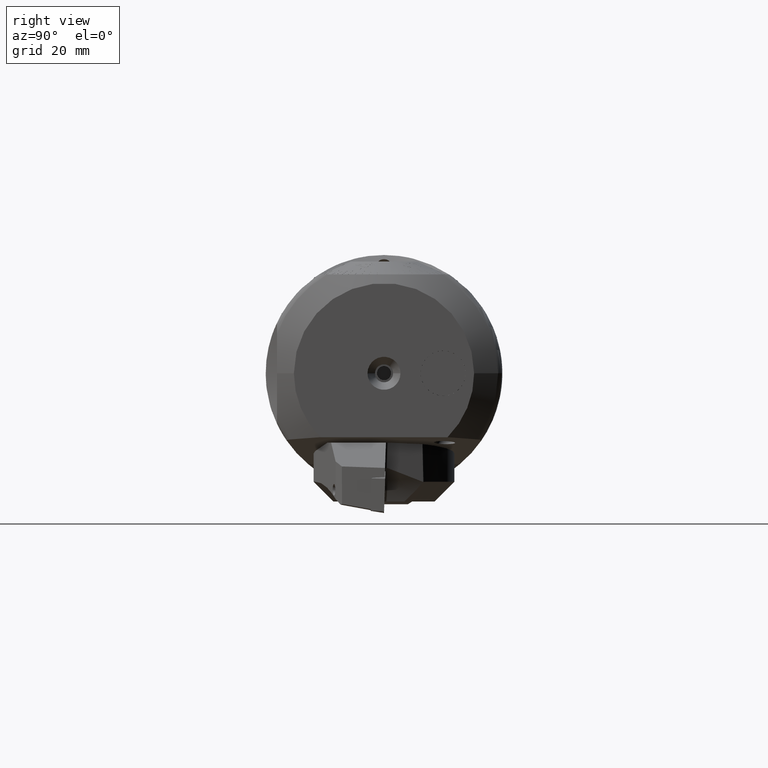
[diagram: clean part render]
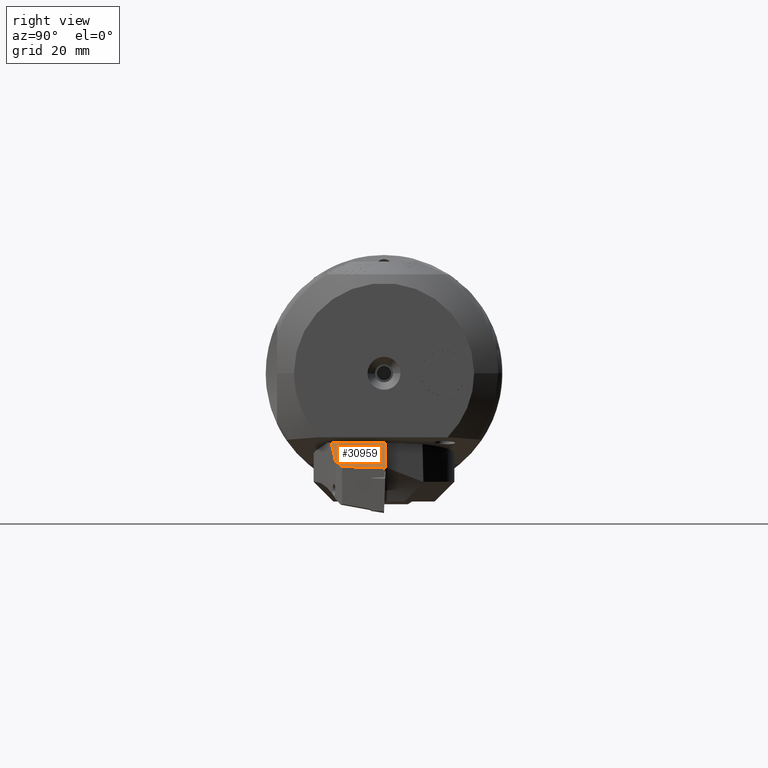
[diagram: same view with one face highlighted and labeled with its STEP entity id]
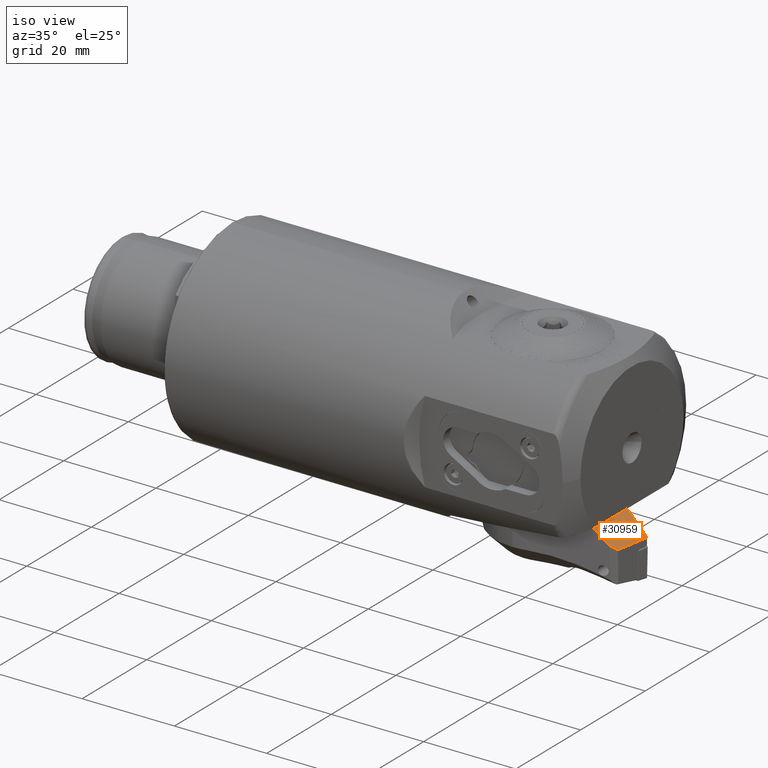
[diagram: same view with one face highlighted and labeled with its STEP entity id]
A machine part, right view. The second image highlights one B-rep face of the part: STEP entity #30959.
A second angle (iso view) of the same face is appended — the face is thin or edge-on in the first view.
In plain terms, the highlighted planar face has unit normal (-0.7018, 0.0614, -0.7097).
Its self-contained STEP definition (entity closure, byte-faithful):
#908 = VECTOR ( 'NONE', #29057, 1000.000000000000000 ) ;
#1380 = VECTOR ( 'NONE', #11910, 999.9999999999998900 ) ;
#1418 = ORIENTED_EDGE ( 'NONE', *, *, #2060, .F. ) ;
#2060 = EDGE_CURVE ( 'NONE', #28028, #10264, #26389, .T. ) ;
#4007 = PLANE ( 'NONE',  #35851 ) ;
#6380 = VERTEX_POINT ( 'NONE', #14474 ) ;
#6718 = CARTESIAN_POINT ( 'NONE',  ( -0.4719108114647346800, 18.24825085885649400, -16.41466790358536400 ) ) ;
#7165 = ORIENTED_EDGE ( 'NONE', *, *, #10949, .T. ) ;
#7263 = DIRECTION ( 'NONE',  ( -0.5130216867564346700, 0.5745871546982245200, 0.6376976952862391000 ) ) ;
#8856 = LINE ( 'NONE', #28420, #1380 ) ;
#9195 = CARTESIAN_POINT ( 'NONE',  ( 0.1091336633381803600, 18.34544548090238800, -8.593421533848939500 ) ) ;
#9280 = ORIENTED_EDGE ( 'NONE', *, *, #13895, .F. ) ;
#9477 = EDGE_CURVE ( 'NONE', #34002, #6380, #8856, .T. ) ;
#9626 = DIRECTION ( 'NONE',  ( 0.7031647419511520800, -0.7110269655060697000, 3.529274144595693400E-017 ) ) ;
#9751 = CARTESIAN_POINT ( 'NONE',  ( -0.4719108114647346800, 18.24825085885649400, -16.41466790358536400 ) ) ;
#9921 = CARTESIAN_POINT ( 'NONE',  ( 2.543600688024949500, 15.61882881530804400, -11.61951974951784700 ) ) ;
#10264 = VERTEX_POINT ( 'NONE', #24031 ) ;
#10949 = EDGE_CURVE ( 'NONE', #33598, #10264, #14916, .T. ) ;
#11910 = DIRECTION ( 'NONE',  ( 0.6864986859664725700, -0.7084947217915372700, -0.1635688948420165600 ) ) ;
#12029 = EDGE_CURVE ( 'NONE', #34002, #33598, #22614, .T. ) ;
#13562 = VECTOR ( 'NONE', #7263, 1000.000000000000100 ) ;
#13600 = EDGE_LOOP ( 'NONE', ( #14953, #23989, #7165, #1418, #9280 ) ) ;
#13895 = EDGE_CURVE ( 'NONE', #6380, #28028, #32166, .T. ) ;
#14186 = CARTESIAN_POINT ( 'NONE',  ( 3.449999999999999700, 14.60618246040251700, -12.71734286535688200 ) ) ;
#14474 = CARTESIAN_POINT ( 'NONE',  ( 3.449999999999999700, 14.89753477965521900, -9.389434440608321000 ) ) ;
#14687 = CARTESIAN_POINT ( 'NONE',  ( -0.7837943615897208200, 19.34552985635534800, -7.483491567431445700 ) ) ;
#14916 = LINE ( 'NONE', #9751, #908 ) ;
#14953 = ORIENTED_EDGE ( 'NONE', *, *, #9477, .F. ) ;
#16118 = FACE_OUTER_BOUND ( 'NONE', #13600, .T. ) ;
#19239 = VECTOR ( 'NONE', #30693, 1000.000000000000000 ) ;
#19628 = DIRECTION ( 'NONE',  ( -0.7040275243395478500, 0.7097470068654253600, -0.02458518289330726900 ) ) ;
#22614 = LINE ( 'NONE', #9921, #13562 ) ;
#23989 = ORIENTED_EDGE ( 'NONE', *, *, #12029, .T. ) ;
#24031 = CARTESIAN_POINT ( 'NONE',  ( -1.051383434176989000, 20.28697056136382000, 0.1792568909180971600 ) ) ;
#25039 = CARTESIAN_POINT ( 'NONE',  ( 3.450000000000001500, 15.74901812526008300, 0.3364486642169622900 ) ) ;
#25190 = CARTESIAN_POINT ( 'NONE',  ( -8.148722636242480300, 27.44196817328270300, -0.06858765536197665400 ) ) ;
#26153 = DIRECTION ( 'NONE',  ( -0.7096834823753598300, -0.7018361144661889900, 0.06144447310039234000 ) ) ;
#26389 = LINE ( 'NONE', #25190, #33716 ) ;
#28028 = VERTEX_POINT ( 'NONE', #25039 ) ;
#28420 = CARTESIAN_POINT ( 'NONE',  ( -4.712052539554659500, 23.32110682935045900, -7.444699598679386000 ) ) ;
#29057 = DIRECTION ( 'NONE',  ( -0.03463936114628648300, 0.1218693434051475600, 0.9919415193434416600 ) ) ;
#30693 = DIRECTION ( 'NONE',  ( -6.997555096396337900E-017, 0.08721457997024750800, 0.9961895487509460100 ) ) ;
#30959 = ADVANCED_FACE ( 'NONE', ( #16118 ), #4007, .F. ) ;
#32166 = LINE ( 'NONE', #14186, #19239 ) ;
#33598 = VERTEX_POINT ( 'NONE', #14687 ) ;
#33716 = VECTOR ( 'NONE', #19628, 1000.000000000000100 ) ;
#34002 = VERTEX_POINT ( 'NONE', #9195 ) ;
#35851 = AXIS2_PLACEMENT_3D ( 'NONE', #6718, #26153, #9626 ) ;